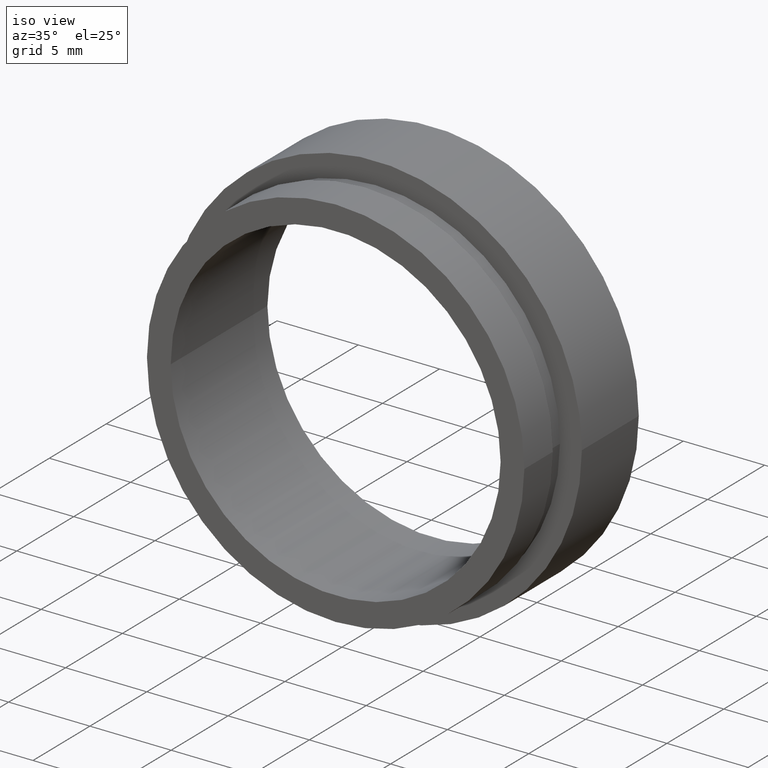
[diagram: clean part render]
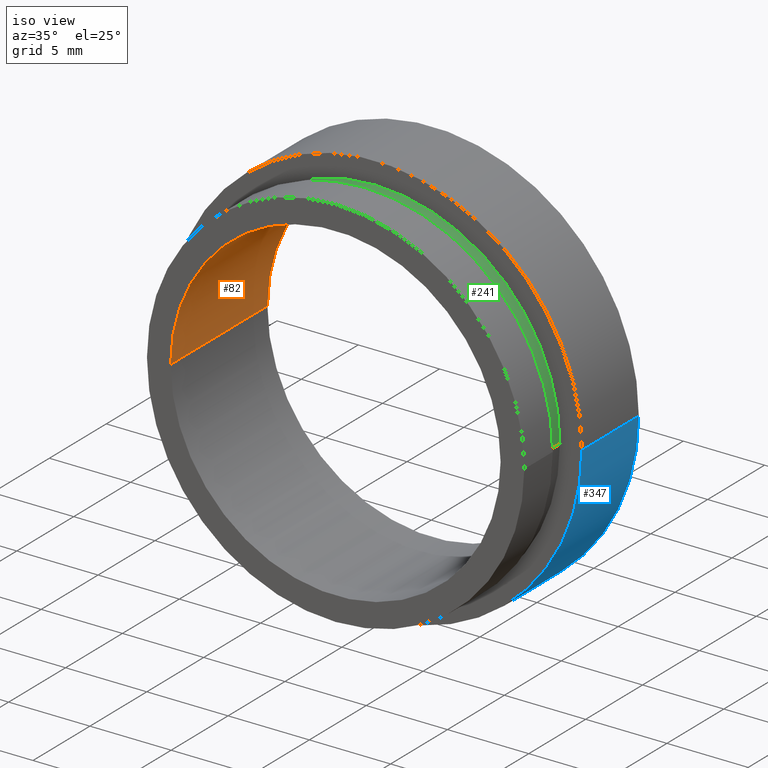
[diagram: same view with three faces highlighted in distinct colors, each labeled with its STEP entity id]
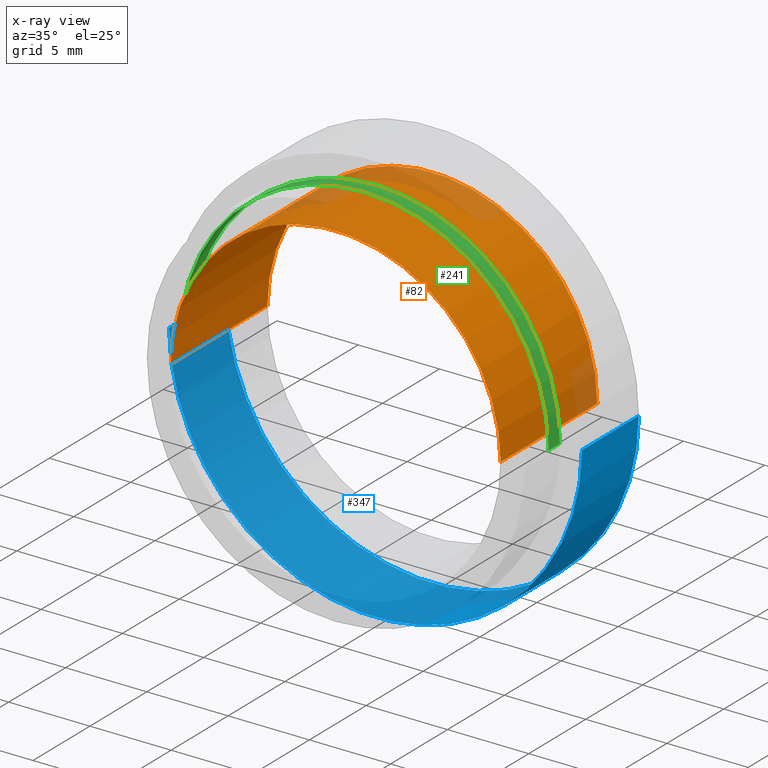
[diagram: x-ray of the same camera — body ghosted, the three highlighted faces saturated]
A machine part, iso view with three faces highlighted in distinct colors.
The next image is the same camera in x-ray (body ghosted, the three faces saturated) — at least one of them is partly hidden behind the body in this view.
Their STEP definitions:

[orange] entity #82 — the highlighted cylindrical surface (partial cylindrical patch) has radius 10.15 mm, axis along (-0, 1, -0).
#7 = VECTOR ( 'NONE', #274, 1000.000000000000000 ) ;
#10 = FACE_OUTER_BOUND ( 'NONE', #172, .T. ) ;
#38 = DIRECTION ( 'NONE',  ( -1.224646799147351000E-016, 1.000000000000000000, -0.0000000000000000000 ) ) ;
#44 = CARTESIAN_POINT ( 'NONE',  ( 2.134740942951285100E-015, -0.5454644111196650400, 0.0000000000000000000 ) ) ;
#57 = DIRECTION ( 'NONE',  ( -1.000000000000000000, 0.0000000000000000000, 0.0000000000000000000 ) ) ;
#63 = CYLINDRICAL_SURFACE ( 'NONE', #95, 10.15000000000000200 ) ;
#72 = EDGE_CURVE ( 'NONE', #180, #309, #161, .T. ) ;
#78 = DIRECTION ( 'NONE',  ( -1.000000000000000000, -1.174997428309413300E-016, 0.0000000000000000000 ) ) ;
#82 = ADVANCED_FACE ( 'NONE', ( #10 ), #63, .F. ) ;
#87 = CARTESIAN_POINT ( 'NONE',  ( 1.093791163676037000E-015, 7.954535588880333700, 0.0000000000000000000 ) ) ;
#95 = AXIS2_PLACEMENT_3D ( 'NONE', #154, #123, #57 ) ;
#103 = CARTESIAN_POINT ( 'NONE',  ( -10.15000000000000000, -0.5454644111196662600, 0.0000000000000000000 ) ) ;
#107 = LINE ( 'NONE', #260, #366 ) ;
#123 = DIRECTION ( 'NONE',  ( -1.224646799147351000E-016, 1.000000000000000000, -0.0000000000000000000 ) ) ;
#141 = ORIENTED_EDGE ( 'NONE', *, *, #369, .F. ) ;
#149 = CARTESIAN_POINT ( 'NONE',  ( 10.15000000000000200, 16.88601823708207700, 1.243016501134563900E-015 ) ) ;
#154 = CARTESIAN_POINT ( 'NONE',  ( 0.0000000000000000000, 16.88601823708207700, 0.0000000000000000000 ) ) ;
#161 = CIRCLE ( 'NONE', #170, 10.15000000000000000 ) ;
#170 = AXIS2_PLACEMENT_3D ( 'NONE', #87, #259, #392 ) ;
#172 = EDGE_LOOP ( 'NONE', ( #141, #271, #318, #202 ) ) ;
#180 = VERTEX_POINT ( 'NONE', #381 ) ;
#202 = ORIENTED_EDGE ( 'NONE', *, *, #72, .T. ) ;
#214 = AXIS2_PLACEMENT_3D ( 'NONE', #44, #388, #78 ) ;
#219 = CIRCLE ( 'NONE', #214, 10.15000000000000200 ) ;
#257 = EDGE_CURVE ( 'NONE', #308, #180, #107, .T. ) ;
#259 = DIRECTION ( 'NONE',  ( -1.224646799147351000E-016, 1.000000000000000000, -0.0000000000000000000 ) ) ;
#260 = CARTESIAN_POINT ( 'NONE',  ( -10.15000000000000200, 16.88601823708207700, 0.0000000000000000000 ) ) ;
#271 = ORIENTED_EDGE ( 'NONE', *, *, #327, .F. ) ;
#274 = DIRECTION ( 'NONE',  ( -1.224646799147351000E-016, 1.000000000000000000, -0.0000000000000000000 ) ) ;
#304 = VERTEX_POINT ( 'NONE', #411 ) ;
#308 = VERTEX_POINT ( 'NONE', #103 ) ;
#309 = VERTEX_POINT ( 'NONE', #317 ) ;
#317 = CARTESIAN_POINT ( 'NONE',  ( 10.15000000000000200, 7.954535588880335500, 1.243016501134563900E-015 ) ) ;
#318 = ORIENTED_EDGE ( 'NONE', *, *, #257, .T. ) ;
#327 = EDGE_CURVE ( 'NONE', #308, #304, #219, .T. ) ;
#366 = VECTOR ( 'NONE', #38, 1000.000000000000000 ) ;
#369 = EDGE_CURVE ( 'NONE', #304, #309, #370, .T. ) ;
#370 = LINE ( 'NONE', #149, #7 ) ;
#381 = CARTESIAN_POINT ( 'NONE',  ( -10.14999999999999900, 7.954535588880332000, 0.0000000000000000000 ) ) ;
#388 = DIRECTION ( 'NONE',  ( -1.224646799147351000E-016, 1.000000000000000000, -0.0000000000000000000 ) ) ;
#392 = DIRECTION ( 'NONE',  ( -1.000000000000000000, -1.709087168450056200E-016, 0.0000000000000000000 ) ) ;
#411 = CARTESIAN_POINT ( 'NONE',  ( 10.15000000000000400, -0.5454644111196639300, 1.243016501134563900E-015 ) ) ;

[blue] entity #347 — the highlighted cylindrical surface (partial cylindrical patch) has radius 12.7 mm, axis along (-0, 1, -0).
#11 = VERTEX_POINT ( 'NONE', #190 ) ;
#15 = LINE ( 'NONE', #350, #351 ) ;
#47 = DIRECTION ( 'NONE',  ( -1.000000000000000000, -1.365923996832131900E-016, 0.0000000000000000000 ) ) ;
#68 = VECTOR ( 'NONE', #83, 1000.000000000000000 ) ;
#79 = CARTESIAN_POINT ( 'NONE',  ( 12.69999999999999800, 16.88601823708207700, 1.555301434917138200E-015 ) ) ;
#83 = DIRECTION ( 'NONE',  ( -1.224646799147351000E-016, 1.000000000000000000, -0.0000000000000000000 ) ) ;
#93 = ORIENTED_EDGE ( 'NONE', *, *, #280, .F. ) ;
#119 = DIRECTION ( 'NONE',  ( -1.000000000000000000, 0.0000000000000000000, 0.0000000000000000000 ) ) ;
#127 = CIRCLE ( 'NONE', #398, 12.69999999999999800 ) ;
#128 = AXIS2_PLACEMENT_3D ( 'NONE', #182, #374, #188 ) ;
#145 = EDGE_CURVE ( 'NONE', #11, #425, #127, .T. ) ;
#148 = DIRECTION ( 'NONE',  ( -1.224646799147351000E-016, 1.000000000000000000, -0.0000000000000000000 ) ) ;
#177 = CYLINDRICAL_SURFACE ( 'NONE', #358, 12.69999999999999800 ) ;
#182 = CARTESIAN_POINT ( 'NONE',  ( 1.706114563249712500E-015, 2.954535588880332900, 0.0000000000000000000 ) ) ;
#186 = EDGE_LOOP ( 'NONE', ( #93, #355, #340, #361 ) ) ;
#188 = DIRECTION ( 'NONE',  ( -1.000000000000000000, -1.365923996832131900E-016, 0.0000000000000000000 ) ) ;
#190 = CARTESIAN_POINT ( 'NONE',  ( 12.69999999999999900, 7.954535588880335500, 1.555301434917138200E-015 ) ) ;
#213 = CARTESIAN_POINT ( 'NONE',  ( 1.093791163676037000E-015, 7.954535588880333700, 0.0000000000000000000 ) ) ;
#234 = CIRCLE ( 'NONE', #128, 12.69999999999999800 ) ;
#238 = CARTESIAN_POINT ( 'NONE',  ( 0.0000000000000000000, 16.88601823708207700, 0.0000000000000000000 ) ) ;
#239 = FACE_OUTER_BOUND ( 'NONE', #186, .T. ) ;
#247 = DIRECTION ( 'NONE',  ( -1.224646799147351000E-016, 1.000000000000000000, -0.0000000000000000000 ) ) ;
#280 = EDGE_CURVE ( 'NONE', #405, #11, #299, .T. ) ;
#297 = VERTEX_POINT ( 'NONE', #337 ) ;
#299 = LINE ( 'NONE', #79, #68 ) ;
#310 = CARTESIAN_POINT ( 'NONE',  ( -12.69999999999999600, 7.954535588880332000, 0.0000000000000000000 ) ) ;
#337 = CARTESIAN_POINT ( 'NONE',  ( -12.69999999999999600, 2.954535588880331100, 0.0000000000000000000 ) ) ;
#340 = ORIENTED_EDGE ( 'NONE', *, *, #399, .T. ) ;
#345 = EDGE_CURVE ( 'NONE', #405, #297, #234, .T. ) ;
#347 = ADVANCED_FACE ( 'NONE', ( #239 ), #177, .T. ) ;
#348 = DIRECTION ( 'NONE',  ( -1.224646799147351000E-016, 1.000000000000000000, -0.0000000000000000000 ) ) ;
#350 = CARTESIAN_POINT ( 'NONE',  ( -12.69999999999999800, 16.88601823708207700, 0.0000000000000000000 ) ) ;
#351 = VECTOR ( 'NONE', #148, 1000.000000000000000 ) ;
#355 = ORIENTED_EDGE ( 'NONE', *, *, #345, .T. ) ;
#358 = AXIS2_PLACEMENT_3D ( 'NONE', #238, #348, #119 ) ;
#361 = ORIENTED_EDGE ( 'NONE', *, *, #145, .F. ) ;
#374 = DIRECTION ( 'NONE',  ( -1.224646799147351000E-016, 1.000000000000000000, -0.0000000000000000000 ) ) ;
#377 = CARTESIAN_POINT ( 'NONE',  ( 12.69999999999999900, 2.954535588880334600, 1.555301434917138200E-015 ) ) ;
#398 = AXIS2_PLACEMENT_3D ( 'NONE', #213, #247, #47 ) ;
#399 = EDGE_CURVE ( 'NONE', #297, #425, #15, .T. ) ;
#405 = VERTEX_POINT ( 'NONE', #377 ) ;
#425 = VERTEX_POINT ( 'NONE', #310 ) ;

[green] entity #241 — the highlighted cylindrical surface (partial cylindrical patch) has radius 11.35 mm, axis along (-0, 1, -0).
#9 = DIRECTION ( 'NONE',  ( -1.224646799147351000E-016, 1.000000000000000000, -0.0000000000000000000 ) ) ;
#17 = VERTEX_POINT ( 'NONE', #157 ) ;
#36 = VERTEX_POINT ( 'NONE', #160 ) ;
#40 = LINE ( 'NONE', #301, #126 ) ;
#85 = ORIENTED_EDGE ( 'NONE', *, *, #201, .T. ) ;
#100 = DIRECTION ( 'NONE',  ( -1.224646799147351000E-016, 1.000000000000000000, -0.0000000000000000000 ) ) ;
#108 = VERTEX_POINT ( 'NONE', #243 ) ;
#126 = VECTOR ( 'NONE', #100, 1000.000000000000000 ) ;
#131 = CARTESIAN_POINT ( 'NONE',  ( 1.828579243164447600E-015, 1.954535588880333700, 0.0000000000000000000 ) ) ;
#134 = DIRECTION ( 'NONE',  ( -1.000000000000000000, 0.0000000000000000000, 0.0000000000000000000 ) ) ;
#142 = ORIENTED_EDGE ( 'NONE', *, *, #215, .F. ) ;
#157 = CARTESIAN_POINT ( 'NONE',  ( 11.35000000000000300, 1.954535588880335100, 1.389974117032246300E-015 ) ) ;
#158 = FACE_OUTER_BOUND ( 'NONE', #375, .T. ) ;
#160 = CARTESIAN_POINT ( 'NONE',  ( -11.34999999999999800, 2.954535588880331500, 0.0000000000000000000 ) ) ;
#166 = AXIS2_PLACEMENT_3D ( 'NONE', #221, #313, #285 ) ;
#171 = CARTESIAN_POINT ( 'NONE',  ( 11.35000000000000000, 16.88601823708207700, 1.389974117032245900E-015 ) ) ;
#174 = EDGE_CURVE ( 'NONE', #36, #262, #395, .T. ) ;
#185 = AXIS2_PLACEMENT_3D ( 'NONE', #131, #9, #227 ) ;
#201 = EDGE_CURVE ( 'NONE', #108, #17, #373, .T. ) ;
#205 = DIRECTION ( 'NONE',  ( -1.224646799147351000E-016, 1.000000000000000000, -0.0000000000000000000 ) ) ;
#215 = EDGE_CURVE ( 'NONE', #108, #36, #40, .T. ) ;
#221 = CARTESIAN_POINT ( 'NONE',  ( 1.706114563249712500E-015, 2.954535588880332900, 0.0000000000000000000 ) ) ;
#227 = DIRECTION ( 'NONE',  ( -1.000000000000000000, -1.146293045799652200E-016, 0.0000000000000000000 ) ) ;
#241 = ADVANCED_FACE ( 'NONE', ( #158 ), #264, .T. ) ;
#243 = CARTESIAN_POINT ( 'NONE',  ( -11.35000000000000000, 1.954535588880332400, 0.0000000000000000000 ) ) ;
#249 = EDGE_CURVE ( 'NONE', #17, #262, #416, .T. ) ;
#252 = CARTESIAN_POINT ( 'NONE',  ( 11.35000000000000100, 2.954535588880334200, 1.389974117032245900E-015 ) ) ;
#262 = VERTEX_POINT ( 'NONE', #252 ) ;
#263 = CARTESIAN_POINT ( 'NONE',  ( 0.0000000000000000000, 16.88601823708207700, 0.0000000000000000000 ) ) ;
#264 = CYLINDRICAL_SURFACE ( 'NONE', #268, 11.35000000000000000 ) ;
#268 = AXIS2_PLACEMENT_3D ( 'NONE', #263, #365, #134 ) ;
#285 = DIRECTION ( 'NONE',  ( -1.000000000000000000, -1.146293045799652200E-016, 0.0000000000000000000 ) ) ;
#293 = ORIENTED_EDGE ( 'NONE', *, *, #249, .T. ) ;
#301 = CARTESIAN_POINT ( 'NONE',  ( -11.35000000000000000, 16.88601823708207700, 0.0000000000000000000 ) ) ;
#313 = DIRECTION ( 'NONE',  ( -1.224646799147351000E-016, 1.000000000000000000, -0.0000000000000000000 ) ) ;
#329 = ORIENTED_EDGE ( 'NONE', *, *, #174, .F. ) ;
#331 = VECTOR ( 'NONE', #205, 1000.000000000000000 ) ;
#365 = DIRECTION ( 'NONE',  ( -1.224646799147351000E-016, 1.000000000000000000, -0.0000000000000000000 ) ) ;
#373 = CIRCLE ( 'NONE', #185, 11.35000000000000100 ) ;
#375 = EDGE_LOOP ( 'NONE', ( #85, #293, #329, #142 ) ) ;
#395 = CIRCLE ( 'NONE', #166, 11.35000000000000000 ) ;
#416 = LINE ( 'NONE', #171, #331 ) ;